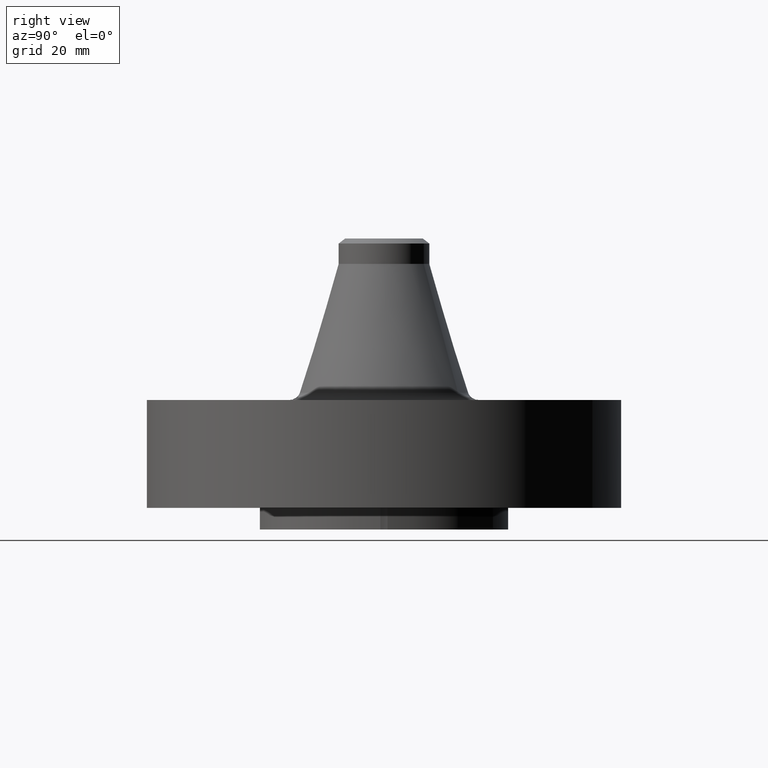
[diagram: clean part render]
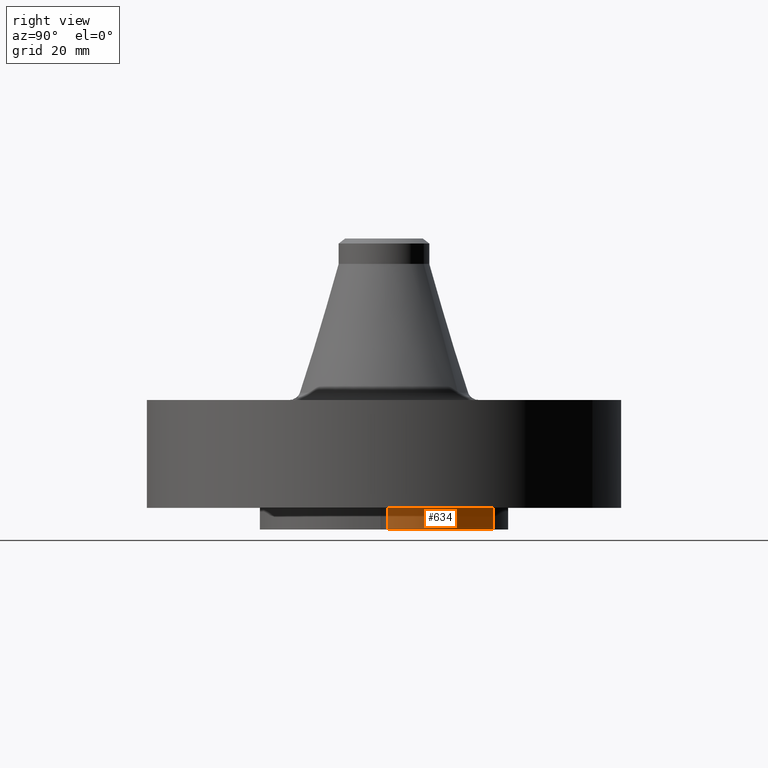
[diagram: same view with one face highlighted and labeled with its STEP entity id]
A machine part, right view. The second image highlights one B-rep face of the part: STEP entity #634.
In plain terms, the highlighted cylindrical surface (partial cylindrical patch) has radius 36.5125 mm, axis along (0, 0, -1).
Its self-contained STEP definition (entity closure, byte-faithful):
#127=AXIS2_PLACEMENT_3D('Cylinder Axis2P3D',#124,#125,#126) ;
#611=AXIS2_PLACEMENT_3D('Circle Axis2P3D',#609,#610,$) ;
#618=AXIS2_PLACEMENT_3D('Circle Axis2P3D',#616,#617,$) ;
#124=CARTESIAN_POINT('Axis2P3D Location',(0.,0.,1.43500000001)) ;
#133=CARTESIAN_POINT('Vertex',(0.689174211746,1.26152493272,0.)) ;
#136=CARTESIAN_POINT('Line Origine',(0.689174211746,1.26152493272,-0.125000000001)) ;
#140=CARTESIAN_POINT('Vertex',(0.689174211746,1.26152493272,-0.250000000001)) ;
#609=CARTESIAN_POINT('Axis2P3D Location',(0.,0.,-0.250000000001)) ;
#613=CARTESIAN_POINT('Vertex',(1.43691500001,0.0410064967415,-0.250000000001)) ;
#616=CARTESIAN_POINT('Axis2P3D Location',(0.,0.,0.)) ;
#620=CARTESIAN_POINT('Vertex',(1.43691500001,0.0410064967415,0.)) ;
#623=CARTESIAN_POINT('Line Origine',(1.43691500001,0.0410064967415,-0.125000000001)) ;
#125=DIRECTION('Axis2P3D Direction',(0.,0.,-0.0393700787402)) ;
#126=DIRECTION('Axis2P3D XDirection',(0.0188750212049,0.0345504945626,0.)) ;
#137=DIRECTION('Vector Direction',(0.,0.,-0.0393700787402)) ;
#610=DIRECTION('Axis2P3D Direction',(0.,0.,-0.0393700787402)) ;
#617=DIRECTION('Axis2P3D Direction',(0.,0.,-0.0393700787402)) ;
#624=DIRECTION('Vector Direction',(0.,0.,-0.0393700787402)) ;
#138=VECTOR('Line Direction',#137,0.0393700787402) ;
#625=VECTOR('Line Direction',#624,0.0393700787402) ;
#629=ORIENTED_EDGE('',*,*,#615,.F.) ;
#630=ORIENTED_EDGE('',*,*,#142,.T.) ;
#631=ORIENTED_EDGE('',*,*,#622,.T.) ;
#632=ORIENTED_EDGE('',*,*,#627,.T.) ;
#634=ADVANCED_FACE('PartBody',(#633),#128,.T.) ;
#612=CIRCLE('generated circle',#611,1.43750000001) ;
#619=CIRCLE('generated circle',#618,1.43750000001) ;
#128=CYLINDRICAL_SURFACE('generated cylinder',#127,1.43750000001) ;
#142=EDGE_CURVE('',#141,#134,#139,.F.) ;
#615=EDGE_CURVE('',#141,#614,#612,.T.) ;
#622=EDGE_CURVE('',#134,#621,#619,.T.) ;
#627=EDGE_CURVE('',#621,#614,#626,.T.) ;
#628=EDGE_LOOP('',(#629,#630,#631,#632)) ;
#633=FACE_OUTER_BOUND('',#628,.T.) ;
#139=LINE('Line',#136,#138) ;
#626=LINE('Line',#623,#625) ;
#134=VERTEX_POINT('',#133) ;
#141=VERTEX_POINT('',#140) ;
#614=VERTEX_POINT('',#613) ;
#621=VERTEX_POINT('',#620) ;